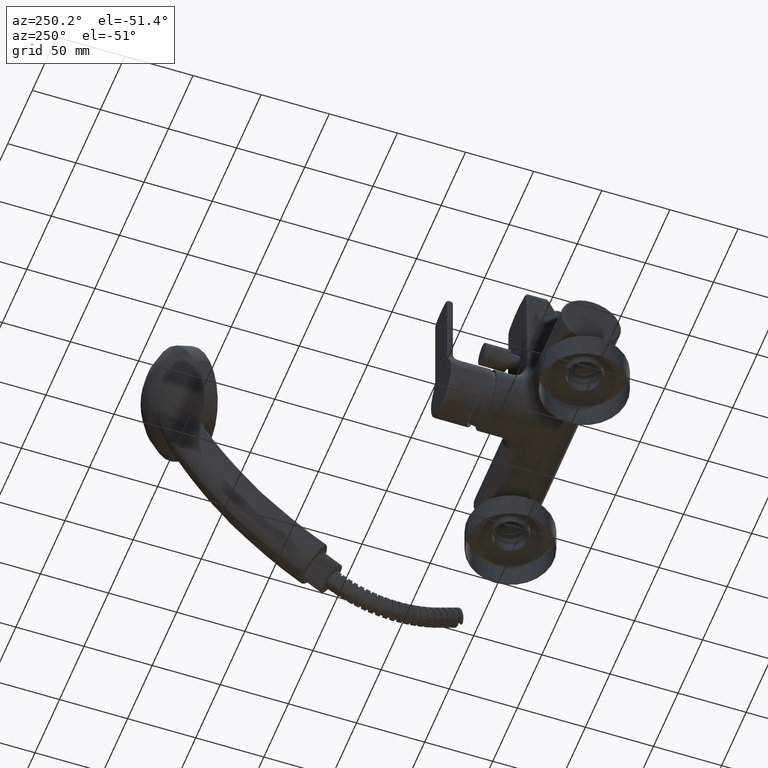
[diagram: clean part render]
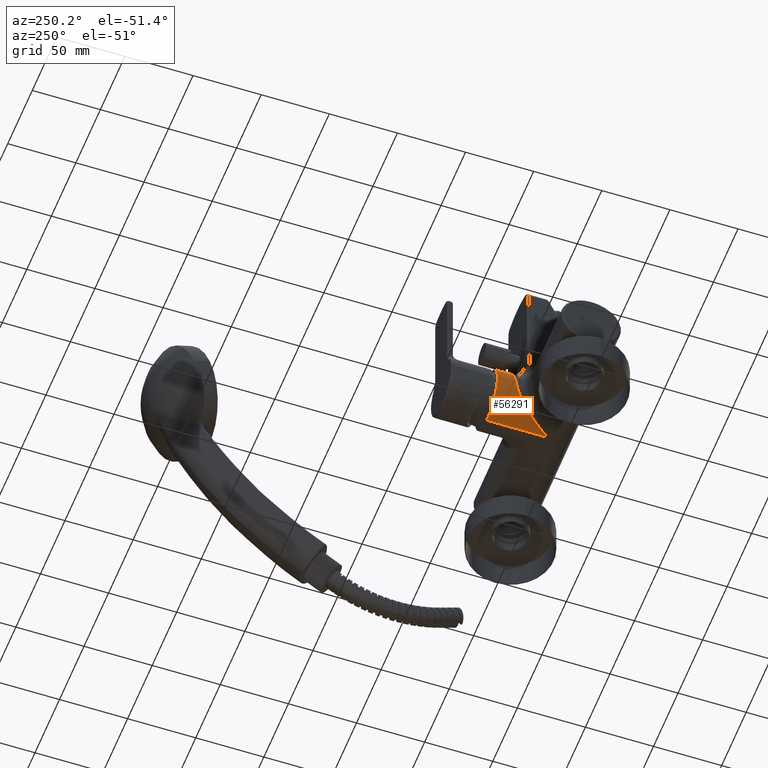
[diagram: same view with one face highlighted and labeled with its STEP entity id]
A machine part, auxiliary view. The second image highlights one B-rep face of the part: STEP entity #56291.
In plain terms, the highlighted cylindrical surface (edge-blend (fillet) strip) has radius 22 mm, axis along (0, 1, 0).
Its self-contained STEP definition (entity closure, byte-faithful):
#5275=DIRECTION('',(-9.643361760972E-12,1.E0,0.E0));
#5276=VECTOR('',#5275,1.3E1);
#5277=CARTESIAN_POINT('',(1.154035303502E-10,3.15E1,2.2E1));
#5278=LINE('',#5277,#5276);
#5309=CARTESIAN_POINT('',(0.E0,4.45E1,0.E0));
#5310=DIRECTION('',(0.E0,1.E0,0.E0));
#5311=DIRECTION('',(0.E0,0.E0,-1.E0));
#5312=AXIS2_PLACEMENT_3D('',#5309,#5310,#5311);
#5314=CARTESIAN_POINT('',(0.E0,3.15E1,0.E0));
#5315=DIRECTION('',(0.E0,1.E0,0.E0));
#5316=DIRECTION('',(-9.984365463751E-1,0.E0,5.589689492853E-2));
#5317=AXIS2_PLACEMENT_3D('',#5314,#5315,#5316);
#5319=CARTESIAN_POINT('',(-2.196681612872E1,3.138354954010E1,1.207886412550E0));
#5320=CARTESIAN_POINT('',(-2.196681612872E1,3.139509370349E1,1.207886412550E0));
#5321=CARTESIAN_POINT('',(-2.196675669730E1,3.141727804591E1,1.208967681501E0));
#5322=CARTESIAN_POINT('',(-2.196650550044E1,3.144791272094E1,1.213526822829E0));
#5323=CARTESIAN_POINT('',(-2.196611618995E1,3.147568896528E1,1.220557776906E0));
#5324=CARTESIAN_POINT('',(-2.196578418441E1,3.149219549399E1,1.226513404043E0));
#5325=CARTESIAN_POINT('',(-2.196560402182E1,3.15E1,1.229731688516E0));
#5327=CARTESIAN_POINT('',(-1.488218271982E-5,0.E0,-2.2E1));
#5328=CARTESIAN_POINT('',(-3.374878830693E-1,4.679626481029E-1,
-2.199998370390E1));
#5329=CARTESIAN_POINT('',(-1.011380884025E0,1.402159694064E0,
-2.198449287655E1));
#5330=CARTESIAN_POINT('',(-2.019245801990E0,2.799398871848E0,
-2.191487728282E1));
#5331=CARTESIAN_POINT('',(-3.019529924804E0,4.186184987698E0,
-2.179951781142E1));
#5332=CARTESIAN_POINT('',(-4.008970727002E0,5.557876146853E0,
-2.163933859639E1));
#5333=CARTESIAN_POINT('',(-4.983589262764E0,6.909090173743E0,
-2.143575616937E1));
#5334=CARTESIAN_POINT('',(-5.939994628923E0,8.234972048354E0,
-2.119052283326E1));
#5335=CARTESIAN_POINT('',(-6.875014094599E0,9.531291327840E0,
-2.090571903035E1));
#5336=CARTESIAN_POINT('',(-7.785975561657E0,1.079417572239E1,
-2.058362945245E1));
#5337=CARTESIAN_POINT('',(-8.670332087861E0,1.202026683281E1,
-2.022681982325E1));
#5338=CARTESIAN_POINT('',(-9.526208970960E0,1.320676268270E1,
-1.983787851451E1));
#5339=CARTESIAN_POINT('',(-1.035180694217E1,1.435141268691E1,
-1.941960197136E1));
#5340=CARTESIAN_POINT('',(-1.114593291168E1,1.545229384808E1,
-1.897470837518E1));
#5341=CARTESIAN_POINT('',(-1.190753950167E1,1.650821155315E1,
-1.850600351788E1));
#5342=CARTESIAN_POINT('',(-1.263595035326E1,1.751802438505E1,
-1.801623312875E1));
#5343=CARTESIAN_POINT('',(-1.333082376982E1,1.848137691204E1,
-1.750803285435E1));
#5344=CARTESIAN_POINT('',(-1.399194728161E1,1.939794044907E1,
-1.698404370761E1));
#5345=CARTESIAN_POINT('',(-1.461951431139E1,2.026795404155E1,
-1.644665513402E1));
#5346=CARTESIAN_POINT('',(-1.521370758187E1,2.109177583552E1,
-1.589831077270E1));
#5347=CARTESIAN_POINT('',(-1.577523001460E1,2.187018637497E1,
-1.534099674668E1));
#5348=CARTESIAN_POINT('',(-1.630477942437E1,2.260437466164E1,
-1.477664946803E1));
#5349=CARTESIAN_POINT('',(-1.680316748217E1,2.329536274488E1,
-1.420705005271E1));
#5350=CARTESIAN_POINT('',(-1.727135907134E1,2.394434940832E1,
-1.363373369971E1));
#5351=CARTESIAN_POINT('',(-1.771023652402E1,2.455283757988E1,
-1.305826142100E1));
#5352=CARTESIAN_POINT('',(-1.812087184842E1,2.512218766437E1,
-1.248187791893E1));
#5353=CARTESIAN_POINT('',(-1.850449174279E1,2.565394268864E1,
-1.190546746071E1));
#5354=CARTESIAN_POINT('',(-1.886225396987E1,2.614993019961E1,
-1.132983957320E1));
#5355=CARTESIAN_POINT('',(-1.919523561916E1,2.661162239305E1,
-1.075577370606E1));
#5356=CARTESIAN_POINT('',(-1.950441092622E1,2.704020686002E1,
-1.018409773403E1));
#5357=CARTESIAN_POINT('',(-1.979077514084E1,2.743716299267E1,
-9.615484976081E0));
#5358=CARTESIAN_POINT('',(-2.005529603195E1,2.780396465890E1,
-9.050539159644E0));
#5359=CARTESIAN_POINT('',(-2.029912685327E1,2.814205274075E1,
-8.489287558025E0));
#5360=CARTESIAN_POINT('',(-2.052337379174E1,2.845289179552E1,
-7.931550973200E0));
#5361=CARTESIAN_POINT('',(-2.072890557918E1,2.873771277858E1,
-7.377464347170E0));
#5362=CARTESIAN_POINT('',(-2.091654424689E1,2.899783791562E1,
-6.827085885515E0));
#5363=CARTESIAN_POINT('',(-2.108697922697E1,2.923417780407E1,
-6.280668258927E0));
#5364=CARTESIAN_POINT('',(-2.124082452660E1,2.944754426266E1,
-5.738603933577E0));
#5365=CARTESIAN_POINT('',(-2.137878611437E1,2.963884860879E1,
-5.200853467995E0));
#5366=CARTESIAN_POINT('',(-2.150175212208E1,2.980921047131E1,
-4.666265977085E0));
#5367=CARTESIAN_POINT('',(-2.161050156863E1,2.995986293154E1,
-4.133289292438E0));
#5368=CARTESIAN_POINT('',(-2.170529539310E1,3.009126225329E1,
-3.602247188672E0));
#5369=CARTESIAN_POINT('',(-2.178616931358E1,3.020345669663E1,
-3.075096957944E0));
#5370=CARTESIAN_POINT('',(-2.185335985802E1,3.029672064922E1,
-2.553769612573E0));
#5371=CARTESIAN_POINT('',(-2.190770244285E1,3.037206098771E1,
-2.035389929512E0));
#5372=CARTESIAN_POINT('',(-2.194974481698E1,3.043018659005E1,
-1.516391813178E0));
#5373=CARTESIAN_POINT('',(-2.197967064456E1,3.047176046593E1,
-9.932499492033E-1));
#5374=CARTESIAN_POINT('',(-2.199730548951E1,3.049574510243E1,
-4.627920877545E-1));
#5375=CARTESIAN_POINT('',(-2.200212421139E1,3.050444891465E1,
7.842461202194E-2));
#5376=CARTESIAN_POINT('',(-2.199331284544E1,3.048511804667E1,
6.324067487290E-1));
#5377=CARTESIAN_POINT('',(-2.197744967577E1,3.048074463839E1,1.014631038043E0));
#5378=CARTESIAN_POINT('',(-2.196683909499E1,3.046600668942E1,1.207763101911E0));
#5380=DIRECTION('',(3.344312961527E-7,9.999999999999E-1,0.E0));
#5381=VECTOR('',#5380,4.45E1);
#5382=CARTESIAN_POINT('',(-1.488218271982E-5,0.E0,-2.2E1));
#5383=LINE('',#5382,#5381);
#6241=CARTESIAN_POINT('',(-1.488218271982E-5,0.E0,-2.2E1));
#41866=DIRECTION('',(2.503019361037E-5,9.999999906561E-1,1.343922382009E-4));
#41867=VECTOR('',#41866,9.175428592556E-1);
#41868=CARTESIAN_POINT('',(-2.196683909499E1,3.046600668942E1,
1.207763101911E0));
#41869=LINE('',#41868,#41867);
#42336=VERTEX_POINT('',#6241);
#42338=VERTEX_POINT('',#5378);
#42383=VERTEX_POINT('',#5319);
#42384=VERTEX_POINT('',#5325);
#42385=CARTESIAN_POINT('',(0.E0,3.15E1,2.2E1));
#42386=VERTEX_POINT('',#42385);
#42444=CARTESIAN_POINT('',(0.E0,4.45E1,-2.2E1));
#42445=CARTESIAN_POINT('',(0.E0,4.45E1,2.2E1));
#42446=VERTEX_POINT('',#42444);
#42447=VERTEX_POINT('',#42445);
#56274=CARTESIAN_POINT('',(0.E0,0.E0,0.E0));
#56275=DIRECTION('',(0.E0,1.E0,0.E0));
#56276=DIRECTION('',(0.E0,0.E0,-1.E0));
#56277=AXIS2_PLACEMENT_3D('',#56274,#56275,#56276);
#56278=CYLINDRICAL_SURFACE('',#56277,2.2E1);
#56279=ORIENTED_EDGE('',*,*,#56256,.T.);
#56280=ORIENTED_EDGE('',*,*,#56176,.F.);
#56281=ORIENTED_EDGE('',*,*,#56031,.F.);
#56283=ORIENTED_EDGE('',*,*,#56282,.F.);
#56285=ORIENTED_EDGE('',*,*,#56284,.F.);
#56287=ORIENTED_EDGE('',*,*,#56286,.F.);
#56288=ORIENTED_EDGE('',*,*,#56168,.T.);
#56289=EDGE_LOOP('',(#56279,#56280,#56281,#56283,#56285,#56287,#56288));
#56290=FACE_OUTER_BOUND('',#56289,.F.);
#56291=ADVANCED_FACE('',(#56290),#56278,.T.);
#5313=CIRCLE('',#5312,2.2E1);
#5318=CIRCLE('',#5317,2.2E1);
#5326=B_SPLINE_CURVE_WITH_KNOTS('',3,(#5319,#5320,#5321,#5322,#5323,#5324,
#5325),.UNSPECIFIED.,.F.,.F.,(4,1,1,1,4),(0.E0,2.5E-1,5.E-1,7.5E-1,1.E0),
.UNSPECIFIED.);
#5379=B_SPLINE_CURVE_WITH_KNOTS('',3,(#5327,#5328,#5329,#5330,#5331,#5332,#5333,
#5334,#5335,#5336,#5337,#5338,#5339,#5340,#5341,#5342,#5343,#5344,#5345,#5346,
#5347,#5348,#5349,#5350,#5351,#5352,#5353,#5354,#5355,#5356,#5357,#5358,#5359,
#5360,#5361,#5362,#5363,#5364,#5365,#5366,#5367,#5368,#5369,#5370,#5371,#5372,
#5373,#5374,#5375,#5376,#5377,#5378),.UNSPECIFIED.,.F.,.F.,(4,1,1,1,1,1,1,1,1,1,
1,1,1,1,1,1,1,1,1,1,1,1,1,1,1,1,1,1,1,1,1,1,1,1,1,1,1,1,1,1,1,1,1,1,1,1,1,1,1,
4),(0.E0,2.040816326531E-2,4.081632653061E-2,6.122448979592E-2,
8.163265306122E-2,1.020408163265E-1,1.224489795918E-1,1.428571428571E-1,
1.632653061224E-1,1.836734693878E-1,2.040816326531E-1,2.244897959184E-1,
2.448979591837E-1,2.653061224490E-1,2.857142857143E-1,3.061224489796E-1,
3.265306122449E-1,3.469387755102E-1,3.673469387755E-1,3.877551020408E-1,
4.081632653061E-1,4.285714285714E-1,4.489795918367E-1,4.693877551020E-1,
4.897959183673E-1,5.102040816327E-1,5.306122448980E-1,5.510204081633E-1,
5.714285714286E-1,5.918367346939E-1,6.122448979592E-1,6.326530612245E-1,
6.530612244898E-1,6.734693877551E-1,6.938775510204E-1,7.142857142857E-1,
7.346938775510E-1,7.551020408163E-1,7.755102040816E-1,7.959183673469E-1,
8.163265306122E-1,8.367346938776E-1,8.571428571429E-1,8.775510204082E-1,
8.979591836735E-1,9.183673469388E-1,9.387755102041E-1,9.591836734694E-1,
9.795918367347E-1,1.E0),.UNSPECIFIED.);
#56031=EDGE_CURVE('',#42384,#42386,#5318,.T.);
#56168=EDGE_CURVE('',#42336,#42446,#5383,.T.);
#56176=EDGE_CURVE('',#42386,#42447,#5278,.T.);
#56256=EDGE_CURVE('',#42446,#42447,#5313,.T.);
#56282=EDGE_CURVE('',#42383,#42384,#5326,.T.);
#56284=EDGE_CURVE('',#42338,#42383,#41869,.T.);
#56286=EDGE_CURVE('',#42336,#42338,#5379,.T.);